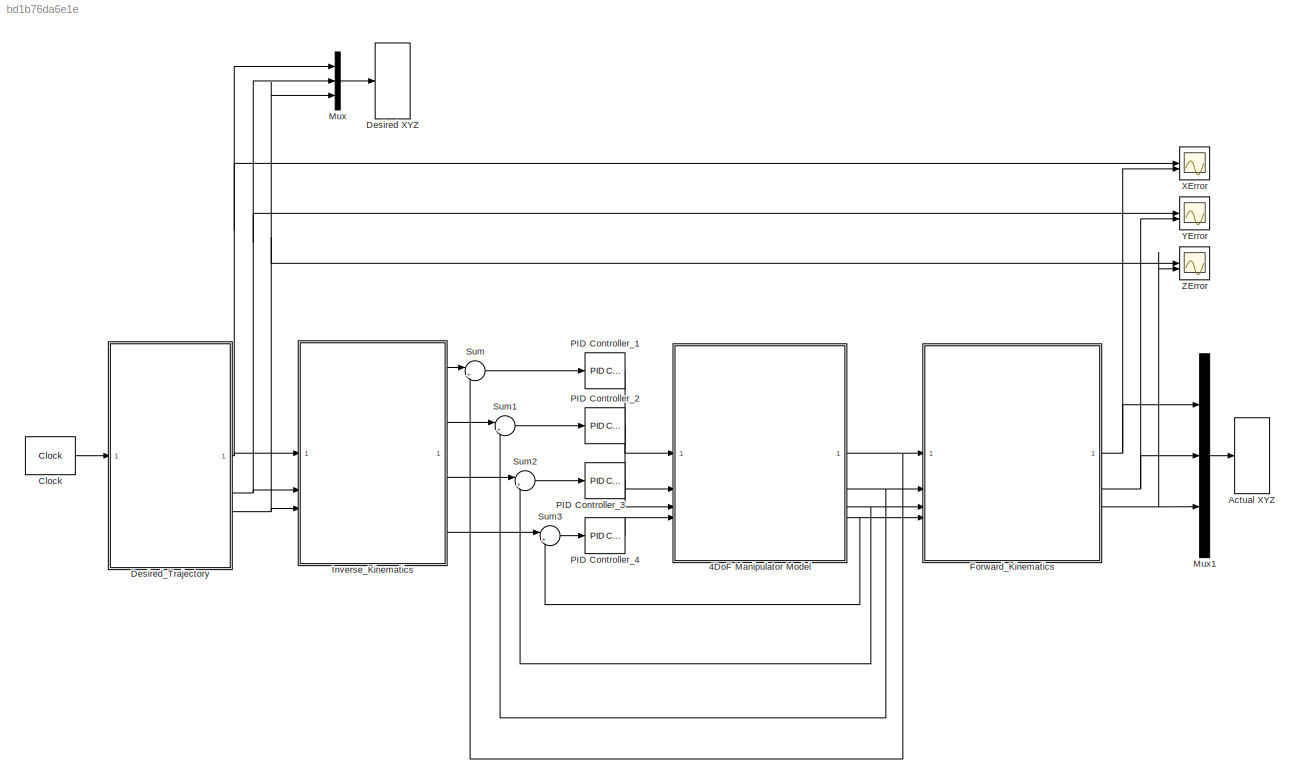
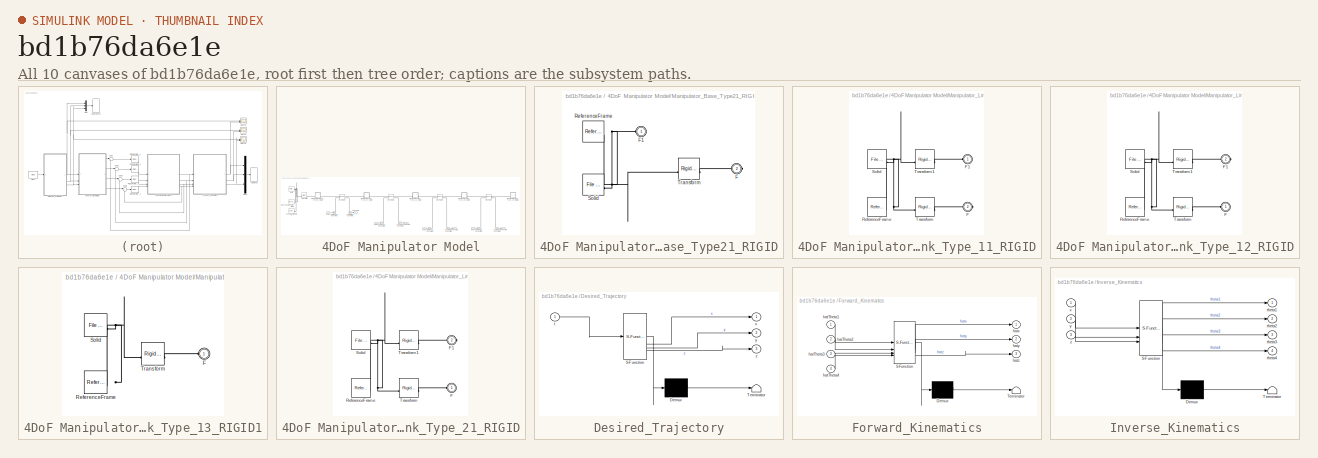
[diagram: thumbnail index - all 10 canvases of the model, root first then tree order]
MODEL slx_bd1b76da6e1e
KIND model
CONFIG AbsTol = auto
CONFIG EnableMultiTasking = off
CONFIG FixedStep = auto
CONFIG MaxStep = auto
CONFIG MinStep = auto
CONFIG RelTol = 1e-3
CONFIG SampleTimeConstraint = Unconstrained
CONFIG SolverName = VariableStepAuto
CONFIG StartTime = 0.0
CONFIG StopTime = 10.0
WORKSPACE source: external: MATLAB File  (data not in archive)
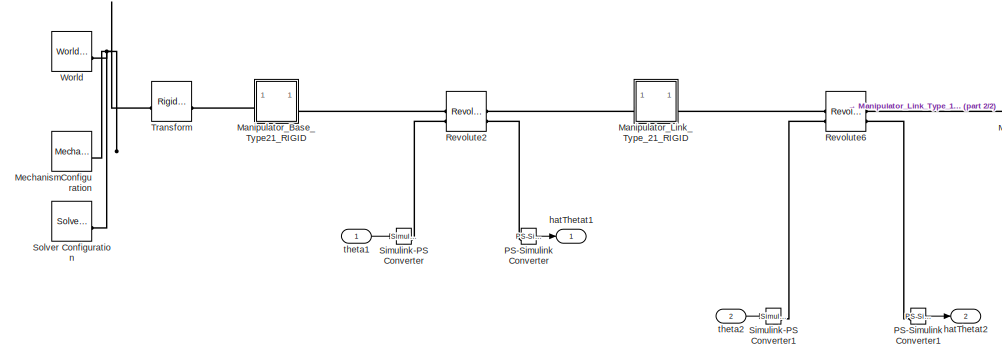
[diagram: 4DoF Manipulator Model - part 1/2, left side, full height]
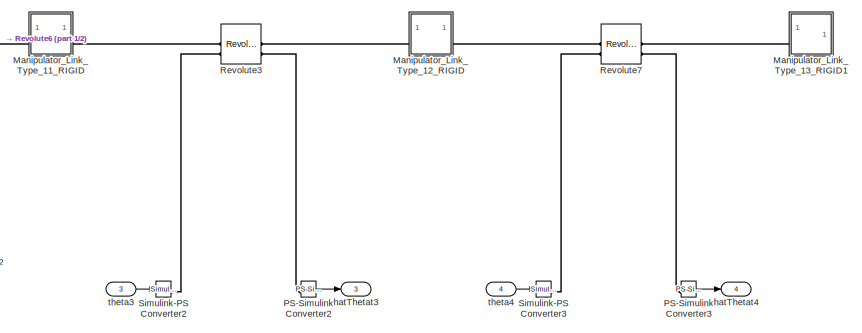
[diagram: 4DoF Manipulator Model - part 2/2, right side, full height]
BLOCK [SubSystem] 4DoF Manipulator Model
BLOCK [SubSystem] 4DoF Manipulator Model/Manipulator_Base_Type21_RIGID
BLOCK [PMIOPort] 4DoF Manipulator Model/Manipulator_Base_Type21_RIGID/F
  Port = 2
  Side = Right
BLOCK [PMIOPort] 4DoF Manipulator Model/Manipulator_Base_Type21_RIGID/F1
  Side = Left
BLOCK [Reference] 4DoF Manipulator Model/Manipulator_Base_Type21_RIGID/ReferenceFrame  REF=sm_lib/Frames and
Transforms/Reference
Frame
  SourceBlock = sm_lib/Frames and\nTransforms/Reference\nFrame
  SourceType = Reference\nFrame
BLOCK [Reference] 4DoF Manipulator Model/Manipulator_Base_Type21_RIGID/Solid  REF=sm_lib/Body Elements/File Solid
  SourceBlock = sm_lib/Body Elements/File Solid
  SourceType = File Solid
BLOCK [Reference] 4DoF Manipulator Model/Manipulator_Base_Type21_RIGID/Transform  REF=sm_lib/Frames and
Transforms/Rigid
Transform
  SourceBlock = sm_lib/Frames and\nTransforms/Rigid\nTransform
  SourceType = Rigid\nTransform
BLOCK [SubSystem] 4DoF Manipulator Model/Manipulator_Link_Type_11_RIGID
BLOCK [PMIOPort] 4DoF Manipulator Model/Manipulator_Link_Type_11_RIGID/F
  Port = 2
  Side = Right
BLOCK [PMIOPort] 4DoF Manipulator Model/Manipulator_Link_Type_11_RIGID/F1
  Side = Left
BLOCK [Reference] 4DoF Manipulator Model/Manipulator_Link_Type_11_RIGID/ReferenceFrame  REF=sm_lib/Frames and
Transforms/Reference
Frame
  SourceBlock = sm_lib/Frames and\nTransforms/Reference\nFrame
  SourceType = Reference\nFrame
BLOCK [Reference] 4DoF Manipulator Model/Manipulator_Link_Type_11_RIGID/Solid  REF=sm_lib/Body Elements/File Solid
  SourceBlock = sm_lib/Body Elements/File Solid
  SourceType = File Solid
BLOCK [Reference] 4DoF Manipulator Model/Manipulator_Link_Type_11_RIGID/Transform  REF=sm_lib/Frames and
Transforms/Rigid
Transform
  SourceBlock = sm_lib/Frames and\nTransforms/Rigid\nTransform
  SourceType = Rigid\nTransform
BLOCK [Reference] 4DoF Manipulator Model/Manipulator_Link_Type_11_RIGID/Transform1  REF=sm_lib/Frames and
Transforms/Rigid
Transform
  SourceBlock = sm_lib/Frames and\nTransforms/Rigid\nTransform
  SourceType = Rigid\nTransform
BLOCK [SubSystem] 4DoF Manipulator Model/Manipulator_Link_Type_12_RIGID
BLOCK [PMIOPort] 4DoF Manipulator Model/Manipulator_Link_Type_12_RIGID/F
  Side = Left
BLOCK [PMIOPort] 4DoF Manipulator Model/Manipulator_Link_Type_12_RIGID/F1
  Port = 2
  Side = Right
BLOCK [Reference] 4DoF Manipulator Model/Manipulator_Link_Type_12_RIGID/ReferenceFrame  REF=sm_lib/Frames and
Transforms/Reference
Frame
  SourceBlock = sm_lib/Frames and\nTransforms/Reference\nFrame
  SourceType = Reference\nFrame
BLOCK [Reference] 4DoF Manipulator Model/Manipulator_Link_Type_12_RIGID/Solid  REF=sm_lib/Body Elements/File Solid
  SourceBlock = sm_lib/Body Elements/File Solid
  SourceType = File Solid
BLOCK [Reference] 4DoF Manipulator Model/Manipulator_Link_Type_12_RIGID/Transform  REF=sm_lib/Frames and
Transforms/Rigid
Transform
  SourceBlock = sm_lib/Frames and\nTransforms/Rigid\nTransform
  SourceType = Rigid\nTransform
BLOCK [Reference] 4DoF Manipulator Model/Manipulator_Link_Type_12_RIGID/Transform1  REF=sm_lib/Frames and
Transforms/Rigid
Transform
  SourceBlock = sm_lib/Frames and\nTransforms/Rigid\nTransform
  SourceType = Rigid\nTransform
BLOCK [SubSystem] 4DoF Manipulator Model/Manipulator_Link_Type_13_RIGID1
BLOCK [PMIOPort] 4DoF Manipulator Model/Manipulator_Link_Type_13_RIGID1/F
  Side = Left
BLOCK [Reference] 4DoF Manipulator Model/Manipulator_Link_Type_13_RIGID1/ReferenceFrame  REF=sm_lib/Frames and
Transforms/Reference
Frame
  SourceBlock = sm_lib/Frames and\nTransforms/Reference\nFrame
  SourceType = Reference\nFrame
BLOCK [Reference] 4DoF Manipulator Model/Manipulator_Link_Type_13_RIGID1/Solid  REF=sm_lib/Body Elements/File Solid
  SourceBlock = sm_lib/Body Elements/File Solid
  SourceType = File Solid
BLOCK [Reference] 4DoF Manipulator Model/Manipulator_Link_Type_13_RIGID1/Transform  REF=sm_lib/Frames and
Transforms/Rigid
Transform
  SourceBlock = sm_lib/Frames and\nTransforms/Rigid\nTransform
  SourceType = Rigid\nTransform
BLOCK [SubSystem] 4DoF Manipulator Model/Manipulator_Link_Type_21_RIGID
BLOCK [PMIOPort] 4DoF Manipulator Model/Manipulator_Link_Type_21_RIGID/F
  Side = Left
BLOCK [PMIOPort] 4DoF Manipulator Model/Manipulator_Link_Type_21_RIGID/F1
  Port = 2
  Side = Right
BLOCK [Reference] 4DoF Manipulator Model/Manipulator_Link_Type_21_RIGID/ReferenceFrame  REF=sm_lib/Frames and
Transforms/Reference
Frame
  SourceBlock = sm_lib/Frames and\nTransforms/Reference\nFrame
  SourceType = Reference\nFrame
BLOCK [Reference] 4DoF Manipulator Model/Manipulator_Link_Type_21_RIGID/Solid  REF=sm_lib/Body Elements/File Solid
  SourceBlock = sm_lib/Body Elements/File Solid
  SourceType = File Solid
BLOCK [Reference] 4DoF Manipulator Model/Manipulator_Link_Type_21_RIGID/Transform  REF=sm_lib/Frames and
Transforms/Rigid
Transform
  SourceBlock = sm_lib/Frames and\nTransforms/Rigid\nTransform
  SourceType = Rigid\nTransform
BLOCK [Reference] 4DoF Manipulator Model/Manipulator_Link_Type_21_RIGID/Transform1  REF=sm_lib/Frames and
Transforms/Rigid
Transform
  SourceBlock = sm_lib/Frames and\nTransforms/Rigid\nTransform
  SourceType = Rigid\nTransform
BLOCK [Reference] 4DoF Manipulator Model/MechanismConfiguration  REF=sm_lib/Utilities/Mechanism
Configuration
  SourceBlock = sm_lib/Utilities/Mechanism\nConfiguration
  SourceType = Mechanism\nConfiguration
BLOCK [Reference] 4DoF Manipulator Model/PS-Simulink Converter  REF=nesl_utility/PS-Simulink
Converter
  SourceBlock = nesl_utility/PS-Simulink\nConverter
  SourceType = PS-Simulink\nConverter
BLOCK [Reference] 4DoF Manipulator Model/PS-Simulink Converter1  REF=nesl_utility/PS-Simulink
Converter
  SourceBlock = nesl_utility/PS-Simulink\nConverter
  SourceType = PS-Simulink\nConverter
BLOCK [Reference] 4DoF Manipulator Model/PS-Simulink Converter2  REF=nesl_utility/PS-Simulink
Converter
  SourceBlock = nesl_utility/PS-Simulink\nConverter
  SourceType = PS-Simulink\nConverter
BLOCK [Reference] 4DoF Manipulator Model/PS-Simulink Converter3  REF=nesl_utility/PS-Simulink
Converter
  SourceBlock = nesl_utility/PS-Simulink\nConverter
  SourceType = PS-Simulink\nConverter
BLOCK [Reference] 4DoF Manipulator Model/Revolute2  REF=sm_lib/Joints/Revolute Joint
  SourceBlock = sm_lib/Joints/Revolute Joint
  SourceType = Revolute Joint
BLOCK [Reference] 4DoF Manipulator Model/Revolute3  REF=sm_lib/Joints/Revolute Joint
  SourceBlock = sm_lib/Joints/Revolute Joint
  SourceType = Revolute Joint
BLOCK [Reference] 4DoF Manipulator Model/Revolute6  REF=sm_lib/Joints/Revolute Joint
  SourceBlock = sm_lib/Joints/Revolute Joint
  SourceType = Revolute Joint
BLOCK [Reference] 4DoF Manipulator Model/Revolute7  REF=sm_lib/Joints/Revolute Joint
  SourceBlock = sm_lib/Joints/Revolute Joint
  SourceType = Revolute Joint
BLOCK [Reference] 4DoF Manipulator Model/Simulink-PS Converter  REF=nesl_utility/Simulink-PS
Converter
  SourceBlock = nesl_utility/Simulink-PS\nConverter
  SourceType = Simulink-PS\nConverter
BLOCK [Reference] 4DoF Manipulator Model/Simulink-PS Converter1  REF=nesl_utility/Simulink-PS
Converter
  SourceBlock = nesl_utility/Simulink-PS\nConverter
  SourceType = Simulink-PS\nConverter
BLOCK [Reference] 4DoF Manipulator Model/Simulink-PS Converter2  REF=nesl_utility/Simulink-PS
Converter
  SourceBlock = nesl_utility/Simulink-PS\nConverter
  SourceType = Simulink-PS\nConverter
BLOCK [Reference] 4DoF Manipulator Model/Simulink-PS Converter3  REF=nesl_utility/Simulink-PS
Converter
  SourceBlock = nesl_utility/Simulink-PS\nConverter
  SourceType = Simulink-PS\nConverter
BLOCK [Reference] 4DoF Manipulator Model/Solver Configuration  REF=nesl_utility/Solver
Configuration
  SourceBlock = nesl_utility/Solver\nConfiguration
  SourceType = Solver\nConfiguration
BLOCK [Reference] 4DoF Manipulator Model/Transform  REF=sm_lib/Frames and
Transforms/Rigid
Transform
  SourceBlock = sm_lib/Frames and\nTransforms/Rigid\nTransform
  SourceType = Rigid\nTransform
BLOCK [Reference] 4DoF Manipulator Model/World  REF=sm_lib/Frames and
Transforms/World Frame
  SourceBlock = sm_lib/Frames and\nTransforms/World Frame
  SourceType = World Frame
BLOCK [Outport] 4DoF Manipulator Model/hatThetat1
BLOCK [Outport] 4DoF Manipulator Model/hatThetat2
  Port = 2
BLOCK [Outport] 4DoF Manipulator Model/hatThetat3
  Port = 3
BLOCK [Outport] 4DoF Manipulator Model/hatThetat4
  Port = 4
BLOCK [Inport] 4DoF Manipulator Model/theta1
BLOCK [Inport] 4DoF Manipulator Model/theta2
  Port = 2
BLOCK [Inport] 4DoF Manipulator Model/theta3
  Port = 3
BLOCK [Inport] 4DoF Manipulator Model/theta4
  Port = 4
BLOCK [S-Function] Actual XYZ
  CopyFcn = if exist('sfun3d','file'), sfun3d([],[],[],'CopyBlock'); end
  DeleteFcn = if exist('sfun3d','file'), sfun3d([],[],[],'DeleteBlock'); end
  EnableBusSupport = off
  FunctionName = sfun3d
  LoadFcn = if exist('sfun3d','file'), sfun3d([],[],[],'LoadBlock'); end
  NameChangeFcn = if exist('sfun3d','file'), sfun3d([],[],[],'NameChange'); end
  Parameters = ax,T,np,cp,gd,ls,mk,mx,hd,tb
  SFcnIsStateOwnerBlock = off
  SFunctionDeploymentMode = off
BLOCK [Clock] Clock
  DisplayTime = on
BLOCK [S-Function] Desired XYZ
  CopyFcn = if exist('sfun3d','file'), sfun3d([],[],[],'CopyBlock'); end
  DeleteFcn = if exist('sfun3d','file'), sfun3d([],[],[],'DeleteBlock'); end
  EnableBusSupport = off
  FunctionName = sfun3d
  LoadFcn = if exist('sfun3d','file'), sfun3d([],[],[],'LoadBlock'); end
  NameChangeFcn = if exist('sfun3d','file'), sfun3d([],[],[],'NameChange'); end
  Parameters = ax,T,np,cp,gd,ls,mk,mx,hd,tb
  SFcnIsStateOwnerBlock = off
  SFunctionDeploymentMode = off
BLOCK [SubSystem] Desired_Trajectory
  ErrorFcn = Stateflow.Translate.translate
  LibrarySourceBlock = simulink/User-Defined\nFunctions/MATLAB Function
  PermitHierarchicalResolution = ExplicitOnly
  SFBlockType = MATLAB Function
  TreatAsAtomicUnit = on
BLOCK [Demux] Desired_Trajectory/ Demux 
  Outputs = 1
BLOCK [S-Function] Desired_Trajectory/ SFunction 
  EnableBusSupport = on
  FunctionName = sf_sfun
  PortCounts = [1 4]
  SFcnIsStateOwnerBlock = off
  SFunctionDeploymentMode = off
  Tag = Stateflow S-Function 2
BLOCK [Terminator] Desired_Trajectory/ Terminator 
BLOCK [Inport] Desired_Trajectory/t
BLOCK [Outport] Desired_Trajectory/x
BLOCK [Outport] Desired_Trajectory/y
  Port = 2
BLOCK [Outport] Desired_Trajectory/z
  Port = 3
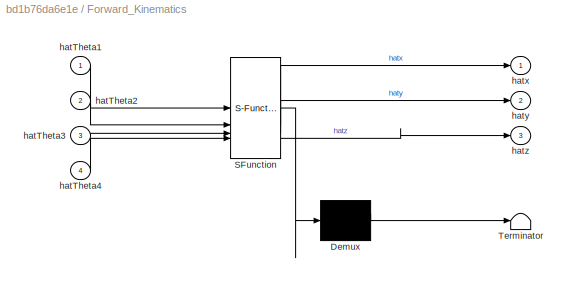
BLOCK [SubSystem] Forward_Kinematics
  ErrorFcn = Stateflow.Translate.translate
  LibrarySourceBlock = simulink/User-Defined\nFunctions/MATLAB Function
  PermitHierarchicalResolution = ExplicitOnly
  SFBlockType = MATLAB Function
  TreatAsAtomicUnit = on
BLOCK [Demux] Forward_Kinematics/ Demux 
  Outputs = 1
BLOCK [S-Function] Forward_Kinematics/ SFunction 
  EnableBusSupport = on
  FunctionName = sf_sfun
  PortCounts = [4 4]
  SFcnIsStateOwnerBlock = off
  SFunctionDeploymentMode = off
  Tag = Stateflow S-Function 3
BLOCK [Terminator] Forward_Kinematics/ Terminator 
BLOCK [Inport] Forward_Kinematics/hatTheta1
BLOCK [Inport] Forward_Kinematics/hatTheta2
  Port = 2
BLOCK [Inport] Forward_Kinematics/hatTheta3
  Port = 3
BLOCK [Inport] Forward_Kinematics/hatTheta4
  Port = 4
BLOCK [Outport] Forward_Kinematics/hatx
BLOCK [Outport] Forward_Kinematics/haty
  Port = 2
BLOCK [Outport] Forward_Kinematics/hatz
  Port = 3
BLOCK [SubSystem] Inverse_Kinematics
  ErrorFcn = Stateflow.Translate.translate
  LibrarySourceBlock = simulink/User-Defined\nFunctions/MATLAB Function
  PermitHierarchicalResolution = ExplicitOnly
  SFBlockType = MATLAB Function
  TreatAsAtomicUnit = on
BLOCK [Demux] Inverse_Kinematics/ Demux 
  Outputs = 1
BLOCK [S-Function] Inverse_Kinematics/ SFunction 
  EnableBusSupport = on
  FunctionName = sf_sfun
  PortCounts = [3 5]
  SFcnIsStateOwnerBlock = off
  SFunctionDeploymentMode = off
  Tag = Stateflow S-Function 1
BLOCK [Terminator] Inverse_Kinematics/ Terminator 
BLOCK [Outport] Inverse_Kinematics/theta1
BLOCK [Outport] Inverse_Kinematics/theta2
  Port = 2
BLOCK [Outport] Inverse_Kinematics/theta3
  Port = 3
BLOCK [Outport] Inverse_Kinematics/theta4
  Port = 4
BLOCK [Inport] Inverse_Kinematics/x
BLOCK [Inport] Inverse_Kinematics/y
  Port = 2
BLOCK [Inport] Inverse_Kinematics/z
  Port = 3
BLOCK [Mux] Mux
  DisplayOption = bar
  Inputs = 3
BLOCK [Mux] Mux1
  DisplayOption = bar
  Inputs = 3
BLOCK [Reference] PID Controller_1  REF=slpidlib/PID Controller
  LibrarySourceBlock = simulink/Continuous/PID Controller
  SourceBlock = slpidlib/PID Controller
  SourceType = PID 1dof
BLOCK [Reference] PID Controller_2  REF=slpidlib/PID Controller
  LibrarySourceBlock = simulink/Continuous/PID Controller
  SourceBlock = slpidlib/PID Controller
  SourceType = PID 1dof
BLOCK [Reference] PID Controller_3  REF=slpidlib/PID Controller
  LibrarySourceBlock = simulink/Continuous/PID Controller
  SourceBlock = slpidlib/PID Controller
  SourceType = PID 1dof
BLOCK [Reference] PID Controller_4  REF=slpidlib/PID Controller
  LibrarySourceBlock = simulink/Continuous/PID Controller
  SourceBlock = slpidlib/PID Controller
  SourceType = PID 1dof
BLOCK [Sum] Sum
  Inputs = |+-
BLOCK [Sum] Sum1
  Inputs = |+-
BLOCK [Sum] Sum2
  Inputs = |+-
BLOCK [Sum] Sum3
  Inputs = |+-
BLOCK [Scope] XError
  Floating = off
  NumInputPorts = 2
  ScopeSpecificationString = Simulink.scopes.TimeScopeBlockCfg('CurrentConfiguration', extmgr.ConfigurationSet(extmgr.Configuration('Core','General UI',true),extmgr.Configuration('Core','Source UI',true),extmgr.Configuration('Sources','WiredSimulink',true,'DataLoggingVariableName','ScopeData1'),extmgr.Configuration('Visuals','Time Domain',true,'SerializedDisplays',{struct('MinYLimReal','50.84922','MaxYLimReal','438.79453','YL...<+1449ch>
BLOCK [Scope] YError
  Floating = off
  NumInputPorts = 2
  ScopeSpecificationString = Simulink.scopes.TimeScopeBlockCfg('CurrentConfiguration', extmgr.ConfigurationSet(extmgr.Configuration('Core','General UI',true),extmgr.Configuration('Core','Source UI',true),extmgr.Configuration('Sources','WiredSimulink',true),extmgr.Configuration('Visuals','Time Domain',true,'SerializedDisplays',{struct('MinYLimReal','-168.73074','MaxYLimReal','445.17435','YLabelReal','','MinYLimMag',' 0.00000',...<+1414ch>
BLOCK [Scope] ZError
  Floating = off
  NumInputPorts = 2
  ScopeSpecificationString = Simulink.scopes.TimeScopeBlockCfg('CurrentConfiguration', extmgr.ConfigurationSet(extmgr.Configuration('Core','General UI',true),extmgr.Configuration('Core','Source UI',true),extmgr.Configuration('Sources','WiredSimulink',true,'DataLoggingVariableName','ScopeData2'),extmgr.Configuration('Visuals','Time Domain',true,'SerializedDisplays',{struct('MinYLimReal','204.63171','MaxYLimReal','204.84073','Y...<+1472ch>
LINE 4DoF Manipulator Model/PS-Simulink Converter1:1 -> 4DoF Manipulator Model/hatThetat2:1
LINE 4DoF Manipulator Model/PS-Simulink Converter2:1 -> 4DoF Manipulator Model/hatThetat3:1
LINE 4DoF Manipulator Model/PS-Simulink Converter3:1 -> 4DoF Manipulator Model/hatThetat4:1
LINE 4DoF Manipulator Model/PS-Simulink Converter:1 -> 4DoF Manipulator Model/hatThetat1:1
LINE 4DoF Manipulator Model/theta1:1 -> 4DoF Manipulator Model/Simulink-PS Converter:1
LINE 4DoF Manipulator Model/theta2:1 -> 4DoF Manipulator Model/Simulink-PS Converter1:1
LINE 4DoF Manipulator Model/theta3:1 -> 4DoF Manipulator Model/Simulink-PS Converter2:1
LINE 4DoF Manipulator Model/theta4:1 -> 4DoF Manipulator Model/Simulink-PS Converter3:1
NET 4DoF Manipulator Model:1 -> Forward_Kinematics:1, Sum:2
NET 4DoF Manipulator Model:2 -> Forward_Kinematics:2, Sum1:2
NET 4DoF Manipulator Model:3 -> Forward_Kinematics:3, Sum2:2
NET 4DoF Manipulator Model:4 -> Forward_Kinematics:4, Sum3:2
LINE Clock:1 -> Desired_Trajectory:1
NET Desired_Trajectory:1 -> Inverse_Kinematics:1, Mux:1, XError:1
NET Desired_Trajectory:2 -> Inverse_Kinematics:2, Mux:2, YError:1
NET Desired_Trajectory:3 -> Inverse_Kinematics:3, Mux:3, ZError:1
NET Forward_Kinematics:1 -> Mux1:1, XError:2
NET Forward_Kinematics:2 -> Mux1:2, YError:2
NET Forward_Kinematics:3 -> Mux1:3, ZError:2
LINE Inverse_Kinematics:1 -> Sum:1
LINE Inverse_Kinematics:2 -> Sum1:1
LINE Inverse_Kinematics:3 -> Sum2:1
LINE Inverse_Kinematics:4 -> Sum3:1
LINE Mux1:1 -> Actual XYZ:1
LINE Mux:1 -> Desired XYZ:1
LINE PID Controller_1:1 -> 4DoF Manipulator Model:1
LINE PID Controller_2:1 -> 4DoF Manipulator Model:2
LINE PID Controller_3:1 -> 4DoF Manipulator Model:3
LINE PID Controller_4:1 -> 4DoF Manipulator Model:4
LINE Sum1:1 -> PID Controller_2:1
LINE Sum2:1 -> PID Controller_3:1
LINE Sum3:1 -> PID Controller_4:1
LINE Sum:1 -> PID Controller_1:1
PNET net1: 4DoF Manipulator Model/Manipulator_Base_Type21_RIGID/F1:RConn1 -- 4DoF Manipulator Model/Manipulator_Base_Type21_RIGID/ReferenceFrame:RConn1 -- 4DoF Manipulator Model/Manipulator_Base_Type21_RIGID/Solid:RConn1 -- 4DoF Manipulator Model/Manipulator_Base_Type21_RIGID/Transform:LConn1
PLINE 4DoF Manipulator Model/Manipulator_Base_Type21_RIGID/F:RConn1 -- 4DoF Manipulator Model/Manipulator_Base_Type21_RIGID/Transform:RConn1
PLINE 4DoF Manipulator Model/Manipulator_Base_Type21_RIGID:LConn1 -- 4DoF Manipulator Model/Transform:RConn1
PLINE 4DoF Manipulator Model/Manipulator_Base_Type21_RIGID:RConn1 -- 4DoF Manipulator Model/Revolute2:LConn1
PLINE 4DoF Manipulator Model/Manipulator_Link_Type_11_RIGID/F1:RConn1 -- 4DoF Manipulator Model/Manipulator_Link_Type_11_RIGID/Transform1:RConn1
PLINE 4DoF Manipulator Model/Manipulator_Link_Type_11_RIGID/F:RConn1 -- 4DoF Manipulator Model/Manipulator_Link_Type_11_RIGID/Transform:RConn1
PNET net2: 4DoF Manipulator Model/Manipulator_Link_Type_11_RIGID/ReferenceFrame:RConn1 -- 4DoF Manipulator Model/Manipulator_Link_Type_11_RIGID/Solid:RConn1 -- 4DoF Manipulator Model/Manipulator_Link_Type_11_RIGID/Transform1:LConn1 -- 4DoF Manipulator Model/Manipulator_Link_Type_11_RIGID/Transform:LConn1
PLINE 4DoF Manipulator Model/Manipulator_Link_Type_11_RIGID:LConn1 -- 4DoF Manipulator Model/Revolute6:RConn1
PLINE 4DoF Manipulator Model/Manipulator_Link_Type_11_RIGID:RConn1 -- 4DoF Manipulator Model/Revolute3:LConn1
PLINE 4DoF Manipulator Model/Manipulator_Link_Type_12_RIGID/F1:RConn1 -- 4DoF Manipulator Model/Manipulator_Link_Type_12_RIGID/Transform1:RConn1
PLINE 4DoF Manipulator Model/Manipulator_Link_Type_12_RIGID/F:RConn1 -- 4DoF Manipulator Model/Manipulator_Link_Type_12_RIGID/Transform:RConn1
PNET net3: 4DoF Manipulator Model/Manipulator_Link_Type_12_RIGID/ReferenceFrame:RConn1 -- 4DoF Manipulator Model/Manipulator_Link_Type_12_RIGID/Solid:RConn1 -- 4DoF Manipulator Model/Manipulator_Link_Type_12_RIGID/Transform1:LConn1 -- 4DoF Manipulator Model/Manipulator_Link_Type_12_RIGID/Transform:LConn1
PLINE 4DoF Manipulator Model/Manipulator_Link_Type_12_RIGID:LConn1 -- 4DoF Manipulator Model/Revolute3:RConn1
PLINE 4DoF Manipulator Model/Manipulator_Link_Type_12_RIGID:RConn1 -- 4DoF Manipulator Model/Revolute7:LConn1
PLINE 4DoF Manipulator Model/Manipulator_Link_Type_13_RIGID1/F:RConn1 -- 4DoF Manipulator Model/Manipulator_Link_Type_13_RIGID1/Transform:RConn1
PNET net4: 4DoF Manipulator Model/Manipulator_Link_Type_13_RIGID1/ReferenceFrame:RConn1 -- 4DoF Manipulator Model/Manipulator_Link_Type_13_RIGID1/Solid:RConn1 -- 4DoF Manipulator Model/Manipulator_Link_Type_13_RIGID1/Transform:LConn1
PLINE 4DoF Manipulator Model/Manipulator_Link_Type_13_RIGID1:LConn1 -- 4DoF Manipulator Model/Revolute7:RConn1
PLINE 4DoF Manipulator Model/Manipulator_Link_Type_21_RIGID/F1:RConn1 -- 4DoF Manipulator Model/Manipulator_Link_Type_21_RIGID/Transform1:RConn1
PLINE 4DoF Manipulator Model/Manipulator_Link_Type_21_RIGID/F:RConn1 -- 4DoF Manipulator Model/Manipulator_Link_Type_21_RIGID/Transform:RConn1
PNET net5: 4DoF Manipulator Model/Manipulator_Link_Type_21_RIGID/ReferenceFrame:RConn1 -- 4DoF Manipulator Model/Manipulator_Link_Type_21_RIGID/Solid:RConn1 -- 4DoF Manipulator Model/Manipulator_Link_Type_21_RIGID/Transform1:LConn1 -- 4DoF Manipulator Model/Manipulator_Link_Type_21_RIGID/Transform:LConn1
PLINE 4DoF Manipulator Model/Manipulator_Link_Type_21_RIGID:LConn1 -- 4DoF Manipulator Model/Revolute2:RConn1
PLINE 4DoF Manipulator Model/Manipulator_Link_Type_21_RIGID:RConn1 -- 4DoF Manipulator Model/Revolute6:LConn1
PNET net6: 4DoF Manipulator Model/MechanismConfiguration:RConn1 -- 4DoF Manipulator Model/Solver Configuration:RConn1 -- 4DoF Manipulator Model/Transform:LConn1 -- 4DoF Manipulator Model/World:RConn1
PLINE 4DoF Manipulator Model/PS-Simulink Converter1:LConn1 -- 4DoF Manipulator Model/Revolute6:RConn2
PLINE 4DoF Manipulator Model/PS-Simulink Converter2:LConn1 -- 4DoF Manipulator Model/Revolute3:RConn2
PLINE 4DoF Manipulator Model/PS-Simulink Converter3:LConn1 -- 4DoF Manipulator Model/Revolute7:RConn2
PLINE 4DoF Manipulator Model/PS-Simulink Converter:LConn1 -- 4DoF Manipulator Model/Revolute2:RConn2
PLINE 4DoF Manipulator Model/Revolute2:LConn2 -- 4DoF Manipulator Model/Simulink-PS Converter:RConn1
PLINE 4DoF Manipulator Model/Revolute3:LConn2 -- 4DoF Manipulator Model/Simulink-PS Converter2:RConn1
PLINE 4DoF Manipulator Model/Revolute6:LConn2 -- 4DoF Manipulator Model/Simulink-PS Converter1:RConn1
PLINE 4DoF Manipulator Model/Revolute7:LConn2 -- 4DoF Manipulator Model/Simulink-PS Converter3:RConn1
note: NET lines group one-source signal fan-out (src -> all destinations, sorted); 1:1 wires keep LINE; PNET lines group multi-terminal physical nets as a canonical sorted terminal list (undirected conserving connections); 2-terminal nets keep the pairwise PLINE form
CHART Inverse_Kinematics states=1 transitions=1
  STATE_LABEL 'eML_blk_kernel()'
  STATE_LABEL 'SCRIPT:\nfunction [theta1, theta2, theta3, theta4] = inverse_kinematics(x, y, z)\nl1 = 205; % Dimension: mm\nl2 = 200; % Dimension: mm\nl3 = 200; % Dimension: mm\nl4 = 200; % Dimension: mm\n\ntheta1InitAng = 0; % Dimension: rad\ntheta2InitAng = pi/2; % Dimension: rad\ntheta3InitAng = 0; % Dimension: rad\ntheta4InitAng = 0; % Dimension: rad\n\nphi = 0; % Dimension: rad\ndestheta1 = atan2(y, x); % Dimension: rad...<+537ch>'
CHART Desired_Trajectory states=1 transitions=1
  STATE_LABEL 'eML_blk_kernel()'
  STATE_LABEL 'SCRIPT:\nfunction [x, y, z] = Desired_Trajectory(t)\n\nx = 320 + 110*cos(t); % Dimension: mm\ny = 320 + 110*sin(t); % Dimension: mm\nz = 300; % Dimension: mm\n'
CHART Forward_Kinematics states=1 transitions=1
  STATE_LABEL 'eML_blk_kernel()'
  STATE_LABEL 'SCRIPT:\nfunction [hatx, haty, hatz] = Forward_Kinematics(hatTheta1, hatTheta2, hatTheta3, hatTheta4)\n\nl1 = 205; % Dimension: mm\nl2 = 200; % Dimension: mm\nl3 = 200; % Dimension: mm\nl4 = 200; % Dimension: mm\n\ntheta1InitAng = 0; % Dimension: rad\ntheta2InitAng = pi/2; % Dimension: rad\ntheta3InitAng = 0; % Dimension: rad\ntheta4InitAng = 0; % Dimension: rad\n\nExpectTheta1 = hatTheta1 - theta1InitAng;\nExp...<+559ch>'
CHART  states=0 transitions=0
CHART  states=0 transitions=0
CHART  states=0 transitions=0
